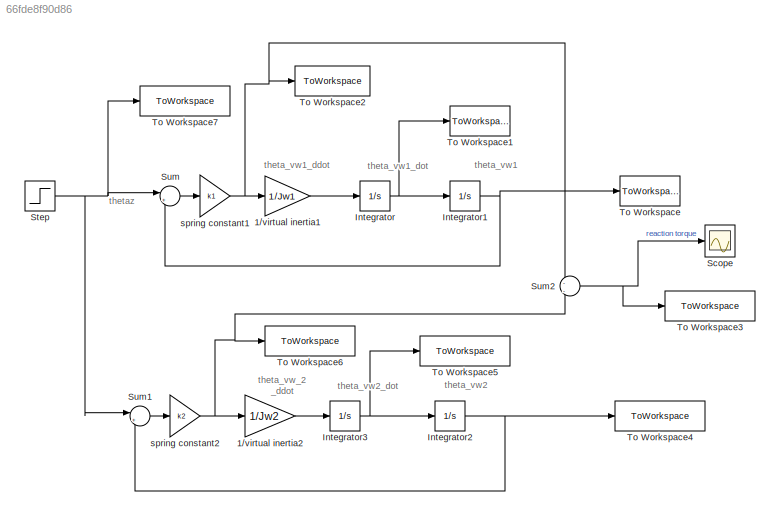
MODEL slx_66fde8f90d86
KIND model
CONFIG AbsTol = auto
CONFIG EnableMultiTasking = on
CONFIG FixedStep = Deltat
CONFIG MaxStep = auto
CONFIG MinStep = auto
CONFIG RelTol = 1e-3
CONFIG SampleTimeConstraint = Unconstrained
CONFIG Solver = ode3
CONFIG SolverName = ode3
CONFIG StartTime = 0.0
CONFIG StopTime = tfinal
BLOCK [Gain] 1//virtual inertia1
  Gain = 1/Jw1
  OutDataTypeStr = Inherit: Same as input
  ParamDataTypeStr = Inherit: Same as input
  SaturateOnIntegerOverflow = on
BLOCK [Gain] 1//virtual inertia2
  Gain = 1/Jw2
  OutDataTypeStr = Inherit: Same as input
  ParamDataTypeStr = Inherit: Same as input
  SaturateOnIntegerOverflow = on
BLOCK [Integrator] Integrator
  Ports = [1, 1]
BLOCK [Integrator] Integrator1
  Ports = [1, 1]
BLOCK [Integrator] Integrator2
  Ports = [1, 1]
BLOCK [Integrator] Integrator3
  Ports = [1, 1]
BLOCK [Scope] Scope
  Floating = off
  NumInputPorts = 1
  Ports = [1]
  ScopeSpecificationString = Simulink.scopes.TimeScopeBlockCfg('CurrentConfiguration', extmgr.ConfigurationSet(extmgr.Configuration('Core','General UI',true),extmgr.Configuration('Core','Source UI',true),extmgr.Configuration('Sources','WiredSimulink',true),extmgr.Configuration('Visuals','Time Domain',true,'SerializedDisplays',{struct('MinYLimReal','613.12079','MaxYLimReal','660.29902','YLabelReal','','MinYLimMag','613.12079',...<+1397ch>
BLOCK [Step] Step
  After = Theta_z_0
  SampleTime = 0
  Time = step_time
BLOCK [Sum] Sum
  InputSameDT = on
  Inputs = |+-
  OutDataTypeStr = Inherit: Same as first input
  Ports = [2, 1]
  SaturateOnIntegerOverflow = on
BLOCK [Sum] Sum1
  InputSameDT = on
  Inputs = |+-
  OutDataTypeStr = Inherit: Same as first input
  Ports = [2, 1]
  SaturateOnIntegerOverflow = on
BLOCK [Sum] Sum2
  InputSameDT = on
  Inputs = -|-
  OutDataTypeStr = Inherit: Same as first input
  Ports = [2, 1]
  SaturateOnIntegerOverflow = on
BLOCK [ToWorkspace] To Workspace
  MaxDataPoints = inf
  Ports = [1]
  SampleTime = -1
  SaveFormat = Timeseries
  VariableName = theta1
BLOCK [ToWorkspace] To Workspace1
  MaxDataPoints = inf
  Ports = [1]
  SampleTime = -1
  SaveFormat = Timeseries
  VariableName = theta1dot
BLOCK [ToWorkspace] To Workspace2
  MaxDataPoints = inf
  Ports = [1]
  SampleTime = -1
  SaveFormat = Timeseries
  VariableName = wheel1_torque
BLOCK [ToWorkspace] To Workspace3
  FixptAsFi = on
  MaxDataPoints = inf
  Ports = [1]
  SampleTime = -1
  SaveFormat = Timeseries
  VariableName = reaction_torque
BLOCK [ToWorkspace] To Workspace4
  FixptAsFi = on
  MaxDataPoints = inf
  Ports = [1]
  SampleTime = -1
  SaveFormat = Timeseries
  VariableName = theta2
BLOCK [ToWorkspace] To Workspace5
  FixptAsFi = on
  MaxDataPoints = inf
  Ports = [1]
  SampleTime = -1
  SaveFormat = Timeseries
  VariableName = theta2dot
BLOCK [ToWorkspace] To Workspace6
  FixptAsFi = on
  MaxDataPoints = inf
  Ports = [1]
  SampleTime = -1
  SaveFormat = Timeseries
  VariableName = wheel2_torque
BLOCK [ToWorkspace] To Workspace7
  FixptAsFi = on
  MaxDataPoints = inf
  Ports = [1]
  SampleTime = -1
  SaveFormat = Timeseries
  VariableName = haptic_wheel_position
BLOCK [Gain] spring constant1
  Gain = k1
  OutDataTypeStr = Inherit: Same as input
  ParamDataTypeStr = Inherit: Same as input
  SaturateOnIntegerOverflow = on
BLOCK [Gain] spring constant2
  Gain = k2
  OutDataTypeStr = Inherit: Same as input
  ParamDataTypeStr = Inherit: Same as input
  SaturateOnIntegerOverflow = on
ANNOTATION (root): theta_vw1
ANNOTATION (root): theta_vw1_ddot
ANNOTATION (root): theta_vw1_dot
ANNOTATION (root): theta_vw2
ANNOTATION (root): theta_vw2_dot
ANNOTATION (root): theta_vw_2 _ddot
ANNOTATION (root): thetaz
LINE 1//virtual inertia1:1 -> Integrator:1
LINE 1//virtual inertia2:1 -> Integrator3:1
NET Integrator1:1 -> Sum:2, To Workspace:1
NET Integrator2:1 -> Sum1:2, To Workspace4:1
NET Integrator3:1 -> Integrator2:1, To Workspace5:1
NET Integrator:1 -> Integrator1:1, To Workspace1:1
NET Step:1 -> Sum1:1, Sum:1, To Workspace7:1
LINE Sum1:1 -> spring constant2:1
NET Sum2:1 -> Scope:1, To Workspace3:1
LINE Sum:1 -> spring constant1:1
NET spring constant1:1 -> 1//virtual inertia1:1, Sum2:1, To Workspace2:1
NET spring constant2:1 -> 1//virtual inertia2:1, Sum2:2, To Workspace6:1
note: NET lines group one-source signal fan-out (src -> all destinations, sorted); 1:1 wires keep LINE
